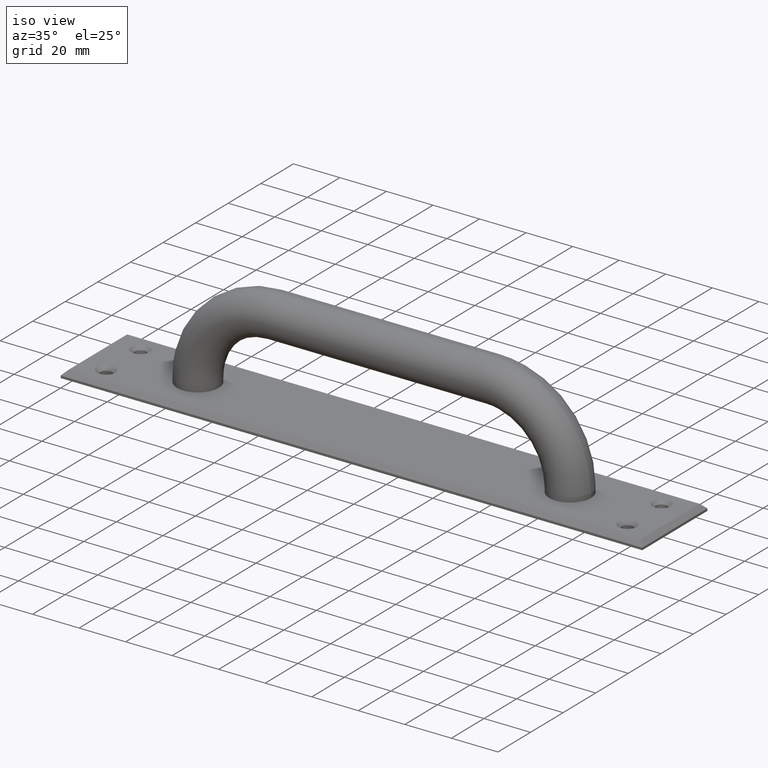
[diagram: clean part render]
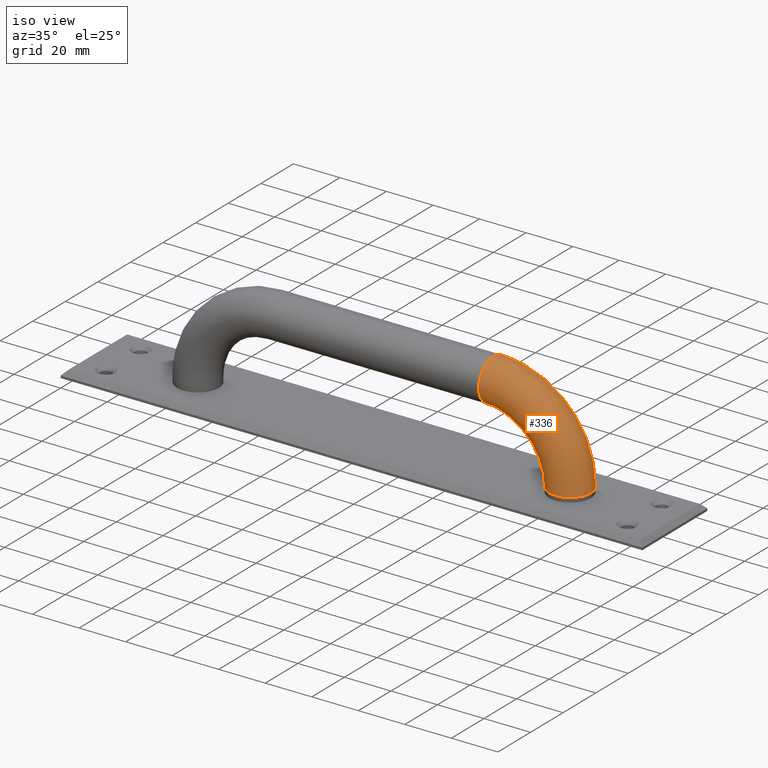
[diagram: same view with one face highlighted and labeled with its STEP entity id]
A machine part, iso view. The second image highlights one B-rep face of the part: STEP entity #336.
In plain terms, the highlighted toroidal blend (fillet) surface has major radius 33 mm and minor (blend) radius 9 mm.
Its self-contained STEP definition (entity closure, byte-faithful):
#70=TOROIDAL_SURFACE('',#367,33.,9.);
#75=FACE_BOUND('',#126,.T.);
#98=FACE_OUTER_BOUND('',#125,.T.);
#125=EDGE_LOOP('',(#257));
#126=EDGE_LOOP('',(#258));
#165=CIRCLE('',#361,9.);
#168=CIRCLE('',#366,9.);
#183=VERTEX_POINT('',#509);
#186=VERTEX_POINT('',#517);
#213=EDGE_CURVE('',#183,#183,#165,.T.);
#216=EDGE_CURVE('',#186,#186,#168,.T.);
#257=ORIENTED_EDGE('',*,*,#216,.T.);
#258=ORIENTED_EDGE('',*,*,#213,.F.);
#336=ADVANCED_FACE('',(#98,#75),#70,.T.);
#361=AXIS2_PLACEMENT_3D('',#510,#408,#409);
#366=AXIS2_PLACEMENT_3D('',#518,#418,#419);
#367=AXIS2_PLACEMENT_3D('',#519,#420,#421);
#408=DIRECTION('center_axis',(0.,0.,-1.));
#409=DIRECTION('ref_axis',(-1.,0.,0.));
#418=DIRECTION('center_axis',(1.,0.,-2.52323414687536E-16));
#419=DIRECTION('ref_axis',(-2.52323414687536E-16,0.,-1.));
#420=DIRECTION('center_axis',(0.,-1.,0.));
#421=DIRECTION('ref_axis',(0.,0.,-1.));
#509=CARTESIAN_POINT('',(214.,20.,5.));
#510=CARTESIAN_POINT('Origin',(205.,20.,5.));
#517=CARTESIAN_POINT('',(172.,20.,47.));
#518=CARTESIAN_POINT('Origin',(172.,20.,38.));
#519=CARTESIAN_POINT('Origin',(172.,20.,4.99999999999999));